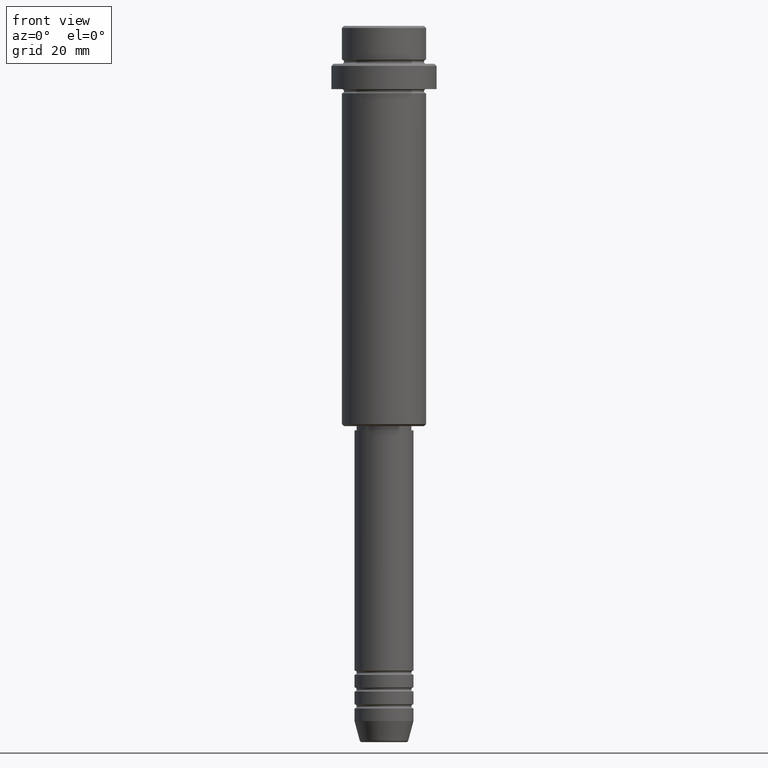
[diagram: clean part render]
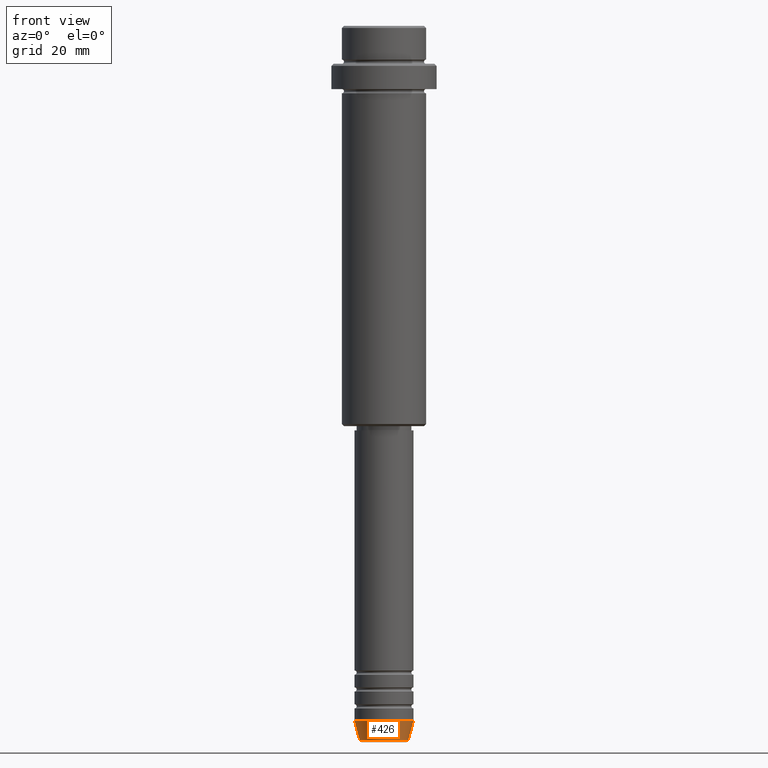
[diagram: same view with one face highlighted and labeled with its STEP entity id]
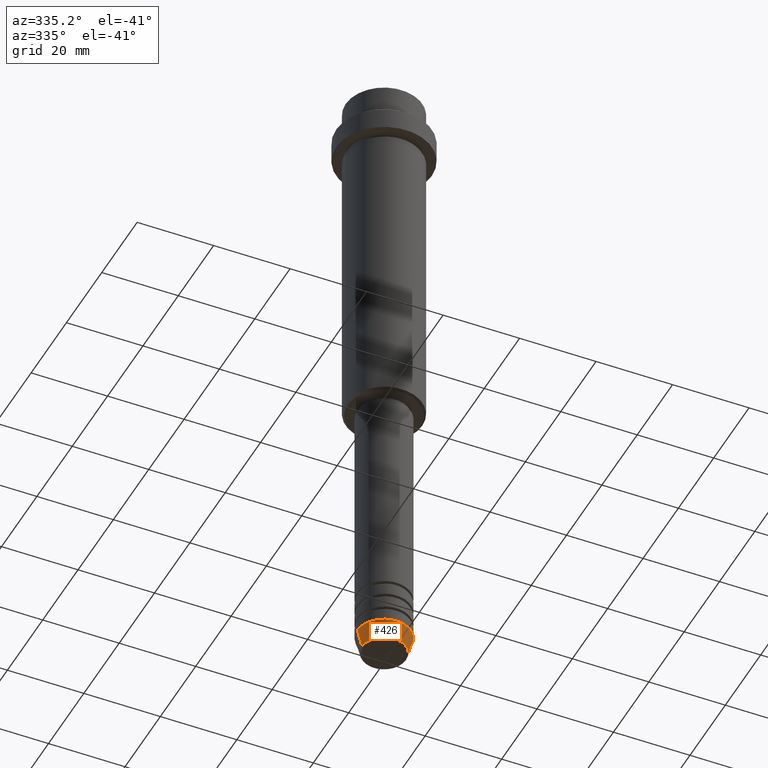
[diagram: same view with one face highlighted and labeled with its STEP entity id]
A machine part, front view. The second image highlights one B-rep face of the part: STEP entity #426.
A second angle (auxiliary view) of the same face is appended — the face is thin or edge-on in the first view.
In plain terms, the highlighted conical surface has half-angle 15 deg.
Its self-contained STEP definition (entity closure, byte-faithful):
#4 = DIRECTION ( 'NONE',  ( 1.000000000000000000, 0.000000000000000000, 0.000000000000000000 ) ) ;
#15 = VECTOR ( 'NONE', #1056, 1000.000000000000000 ) ;
#92 = DIRECTION ( 'NONE',  ( 1.000000000000000000, 0.000000000000000000, 0.000000000000000000 ) ) ;
#115 = CARTESIAN_POINT ( 'NONE',  ( 5.759553456999435994, 0.000000000000000000, -169.6294095225512422 ) ) ;
#121 = CARTESIAN_POINT ( 'NONE',  ( 0.000000000000000000, 0.000000000000000000, -164.9999999999999716 ) ) ;
#128 = DIRECTION ( 'NONE',  ( 1.000000000000000000, 0.000000000000000000, 0.000000000000000000 ) ) ;
#131 = ORIENTED_EDGE ( 'NONE', *, *, #194, .T. ) ;
#139 = DIRECTION ( 'NONE',  ( -0.000000000000000000, -0.000000000000000000, 1.000000000000000000 ) ) ;
#153 = EDGE_CURVE ( 'NONE', #1281, #1288, #378, .T. ) ;
#194 = EDGE_CURVE ( 'NONE', #652, #1281, #928, .T. ) ;
#231 = DIRECTION ( 'NONE',  ( -0.2588190451025213501, 3.169619151431772337E-17, 0.9659258262890680902 ) ) ;
#263 = AXIS2_PLACEMENT_3D ( 'NONE', #1199, #1080, #92 ) ;
#277 = AXIS2_PLACEMENT_3D ( 'NONE', #121, #139, #128 ) ;
#346 = CARTESIAN_POINT ( 'NONE',  ( -7.000000000000000000, 8.572527594031473190E-16, -164.9999999999999716 ) ) ;
#352 = VECTOR ( 'NONE', #231, 1000.000000000000000 ) ;
#378 = LINE ( 'NONE', #821, #15 ) ;
#426 = ADVANCED_FACE ( 'NONE', ( #693 ), #1022, .T. ) ;
#472 = LINE ( 'NONE', #346, #352 ) ;
#473 = ORIENTED_EDGE ( 'NONE', *, *, #1174, .F. ) ;
#501 = ORIENTED_EDGE ( 'NONE', *, *, #640, .F. ) ;
#554 = CARTESIAN_POINT ( 'NONE',  ( 7.000000000000000000, 0.000000000000000000, -164.9999999999999716 ) ) ;
#634 = CARTESIAN_POINT ( 'NONE',  ( 0.000000000000000000, 0.000000000000000000, -169.6294095225512422 ) ) ;
#640 = EDGE_CURVE ( 'NONE', #652, #833, #472, .T. ) ;
#652 = VERTEX_POINT ( 'NONE', #1134 ) ;
#687 = CIRCLE ( 'NONE', #263, 7.000000000000000000 ) ;
#693 = FACE_OUTER_BOUND ( 'NONE', #1217, .T. ) ;
#762 = DIRECTION ( 'NONE',  ( -0.000000000000000000, -0.000000000000000000, 1.000000000000000000 ) ) ;
#821 = CARTESIAN_POINT ( 'NONE',  ( 7.000000000000000000, 0.000000000000000000, -164.9999999999999716 ) ) ;
#833 = VERTEX_POINT ( 'NONE', #1075 ) ;
#836 = AXIS2_PLACEMENT_3D ( 'NONE', #634, #762, #4 ) ;
#928 = CIRCLE ( 'NONE', #836, 5.759553456999435994 ) ;
#1022 = CONICAL_SURFACE ( 'NONE', #277, 7.000000000000000000, 0.2617993877991500740 ) ;
#1056 = DIRECTION ( 'NONE',  ( 0.2588190451025213501, 0.000000000000000000, 0.9659258262890680902 ) ) ;
#1075 = CARTESIAN_POINT ( 'NONE',  ( -7.000000000000000000, 8.572527594031473190E-16, -164.9999999999999716 ) ) ;
#1080 = DIRECTION ( 'NONE',  ( -0.000000000000000000, -0.000000000000000000, 1.000000000000000000 ) ) ;
#1134 = CARTESIAN_POINT ( 'NONE',  ( -5.759553456999435994, 7.812973149831951773E-16, -169.6294095225512422 ) ) ;
#1174 = EDGE_CURVE ( 'NONE', #833, #1288, #687, .T. ) ;
#1199 = CARTESIAN_POINT ( 'NONE',  ( 0.000000000000000000, 0.000000000000000000, -164.9999999999999716 ) ) ;
#1217 = EDGE_LOOP ( 'NONE', ( #501, #131, #1411, #473 ) ) ;
#1281 = VERTEX_POINT ( 'NONE', #115 ) ;
#1288 = VERTEX_POINT ( 'NONE', #554 ) ;
#1411 = ORIENTED_EDGE ( 'NONE', *, *, #153, .T. ) ;